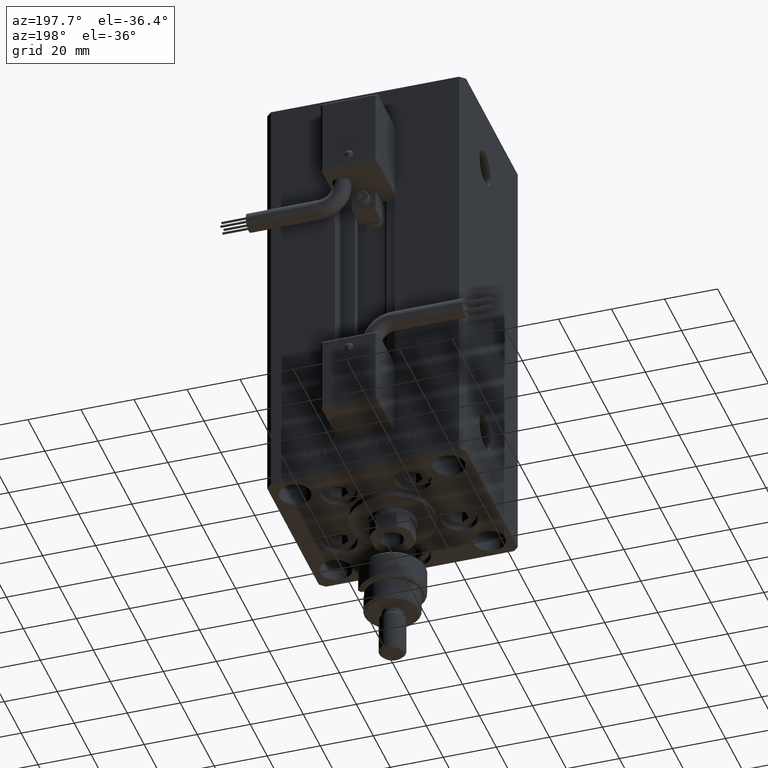
[diagram: clean part render]
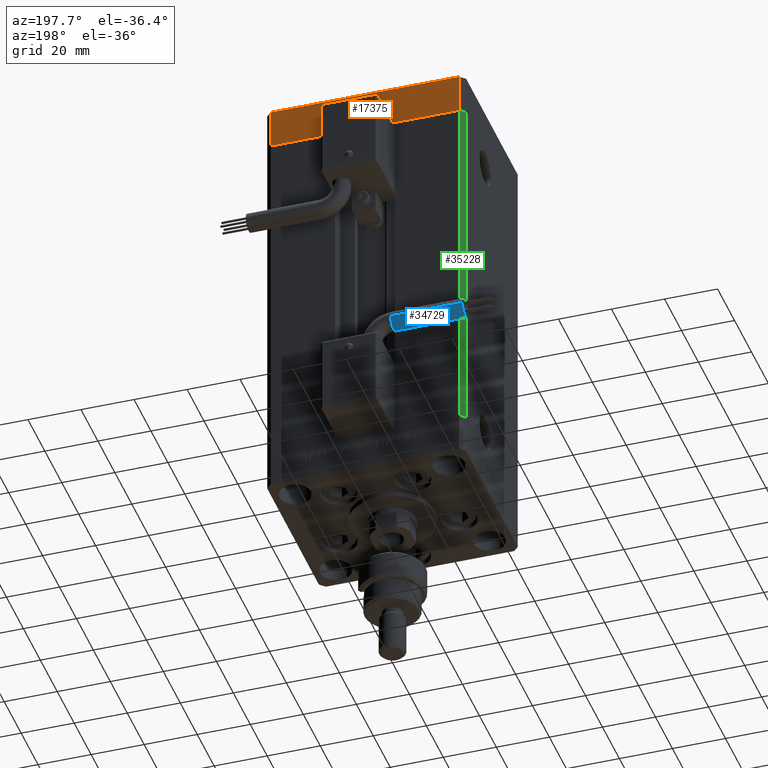
[diagram: same view with three faces highlighted in distinct colors, each labeled with its STEP entity id]
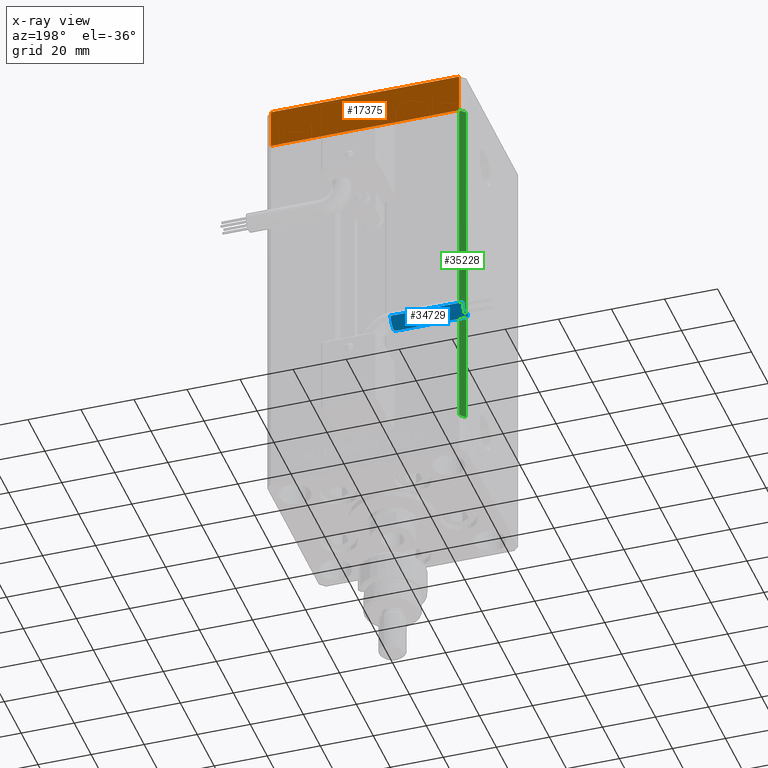
[diagram: x-ray of the same camera — body ghosted, the three highlighted faces saturated]
A machine part, auxiliary view with three faces highlighted in distinct colors.
The next image is the same camera in x-ray (body ghosted, the three faces saturated) — at least one of them is partly hidden behind the body in this view.
Their STEP definitions:

[orange] entity #17375 — the highlighted planar face has unit normal (-0, 1, 0).
#1588 = CARTESIAN_POINT ( 'NONE',  ( 35.49999999999992184, 32.50000000000000711, -15.00000000000000000 ) ) ;
#1651 = EDGE_CURVE ( 'NONE', #52981, #53309, #39514, .T. ) ;
#2789 = CARTESIAN_POINT ( 'NONE',  ( 35.49999999999992184, 32.50000000000000711, 0.000000000000000000 ) ) ;
#5662 = ORIENTED_EDGE ( 'NONE', *, *, #1651, .F. ) ;
#7018 = DIRECTION ( 'NONE',  ( -1.954618001100629052E-16, 1.000000000000000000, 0.000000000000000000 ) ) ;
#7950 = DIRECTION ( 'NONE',  ( 0.000000000000000000, 0.000000000000000000, 1.000000000000000000 ) ) ;
#8135 = AXIS2_PLACEMENT_3D ( 'NONE', #1588, #7018, #52498 ) ;
#9519 = CARTESIAN_POINT ( 'NONE',  ( 35.49999999999992184, 32.50000000000000711, -15.00000000000000000 ) ) ;
#10128 = DIRECTION ( 'NONE',  ( -1.000000000000000000, -1.954618001100629052E-16, 0.000000000000000000 ) ) ;
#11477 = DIRECTION ( 'NONE',  ( 0.000000000000000000, 0.000000000000000000, 1.000000000000000000 ) ) ;
#14752 = VECTOR ( 'NONE', #26142, 1000.000000000000000 ) ;
#15582 = CARTESIAN_POINT ( 'NONE',  ( -35.50000000000002842, 32.49999999999999289, -15.00000000000000000 ) ) ;
#16147 = LINE ( 'NONE', #53707, #16171 ) ;
#16171 = VECTOR ( 'NONE', #7950, 1000.000000000000000 ) ;
#17083 = ORIENTED_EDGE ( 'NONE', *, *, #22594, .T. ) ;
#17099 = VERTEX_POINT ( 'NONE', #39747 ) ;
#17375 = ADVANCED_FACE ( 'NONE', ( #44321 ), #27726, .T. ) ;
#18851 = LINE ( 'NONE', #51788, #27472 ) ;
#22594 = EDGE_CURVE ( 'NONE', #51465, #17099, #16147, .T. ) ;
#23367 = CARTESIAN_POINT ( 'NONE',  ( 35.49999999999992184, 32.50000000000000711, -15.00000000000000000 ) ) ;
#26142 = DIRECTION ( 'NONE',  ( -1.000000000000000000, -1.954618001100629052E-16, 0.000000000000000000 ) ) ;
#27472 = VECTOR ( 'NONE', #10128, 1000.000000000000000 ) ;
#27726 = PLANE ( 'NONE',  #8135 ) ;
#37921 = EDGE_CURVE ( 'NONE', #53309, #17099, #18851, .T. ) ;
#39514 = LINE ( 'NONE', #44148, #52881 ) ;
#39747 = CARTESIAN_POINT ( 'NONE',  ( -35.50000000000002842, 32.49999999999999289, 0.000000000000000000 ) ) ;
#41346 = EDGE_LOOP ( 'NONE', ( #48018, #5662, #44302, #17083 ) ) ;
#44148 = CARTESIAN_POINT ( 'NONE',  ( 35.49999999999992184, 32.50000000000000711, -15.00000000000000000 ) ) ;
#44302 = ORIENTED_EDGE ( 'NONE', *, *, #49792, .T. ) ;
#44321 = FACE_OUTER_BOUND ( 'NONE', #41346, .T. ) ;
#47343 = LINE ( 'NONE', #9519, #14752 ) ;
#48018 = ORIENTED_EDGE ( 'NONE', *, *, #37921, .F. ) ;
#49792 = EDGE_CURVE ( 'NONE', #52981, #51465, #47343, .T. ) ;
#51465 = VERTEX_POINT ( 'NONE', #15582 ) ;
#51788 = CARTESIAN_POINT ( 'NONE',  ( 35.49999999999992184, 32.50000000000000711, 0.000000000000000000 ) ) ;
#52498 = DIRECTION ( 'NONE',  ( -1.000000000000000000, -1.954618001100629052E-16, 0.000000000000000000 ) ) ;
#52881 = VECTOR ( 'NONE', #11477, 1000.000000000000000 ) ;
#52981 = VERTEX_POINT ( 'NONE', #23367 ) ;
#53309 = VERTEX_POINT ( 'NONE', #2789 ) ;
#53707 = CARTESIAN_POINT ( 'NONE',  ( -35.50000000000002842, 32.49999999999999289, -15.00000000000000000 ) ) ;

[blue] entity #34729 — the highlighted cylindrical surface (edge-blend (fillet) strip) has radius 3.5 mm, axis along (-1, 0, -0).
#1715 = VERTEX_POINT ( 'NONE', #3040 ) ;
#2519 = CARTESIAN_POINT ( 'NONE',  ( 13.80000000000000071, 45.50000000000000711, -65.00000000000000000 ) ) ;
#3040 = CARTESIAN_POINT ( 'NONE',  ( 40.80000000000000426, 38.50000000000000000, -65.00000000000000000 ) ) ;
#3043 = DIRECTION ( 'NONE',  ( 1.000000000000000000, 0.000000000000000000, 2.220446049250000002E-16 ) ) ;
#3082 = DIRECTION ( 'NONE',  ( 0.000000000000000000, 0.000000000000000000, -1.000000000000000000 ) ) ;
#3236 = CYLINDRICAL_SURFACE ( 'NONE', #14292, 3.500000000000003109 ) ;
#3578 = DIRECTION ( 'NONE',  ( 0.000000000000000000, 0.000000000000000000, -1.000000000000000000 ) ) ;
#6662 = AXIS2_PLACEMENT_3D ( 'NONE', #11520, #49337, #3082 ) ;
#10072 = CARTESIAN_POINT ( 'NONE',  ( 13.79999999999999893, 38.50000000000000000, -65.00000000000000000 ) ) ;
#11234 = CARTESIAN_POINT ( 'NONE',  ( 13.79999999999999716, 38.50000000000000000, -65.00000000000000000 ) ) ;
#11497 = LINE ( 'NONE', #2519, #48980 ) ;
#11520 = CARTESIAN_POINT ( 'NONE',  ( 13.79999999999999893, 42.00000000000000000, -65.00000000000000000 ) ) ;
#12760 = CARTESIAN_POINT ( 'NONE',  ( 13.79999999999999893, 42.00000000000000000, -65.00000000000000000 ) ) ;
#12789 = CIRCLE ( 'NONE', #6662, 3.500000000000003109 ) ;
#14292 = AXIS2_PLACEMENT_3D ( 'NONE', #12760, #38049, #32896 ) ;
#15225 = CARTESIAN_POINT ( 'NONE',  ( 40.80000000000000426, 42.00000000000000000, -65.00000000000000000 ) ) ;
#19706 = AXIS2_PLACEMENT_3D ( 'NONE', #15225, #22584, #27744 ) ;
#22584 = DIRECTION ( 'NONE',  ( 1.000000000000000000, 0.000000000000000000, 2.220446049250000002E-16 ) ) ;
#23230 = LINE ( 'NONE', #11234, #26383 ) ;
#23979 = CARTESIAN_POINT ( 'NONE',  ( 40.80000000000000426, 45.50000000000000711, -65.00000000000000000 ) ) ;
#24383 = EDGE_CURVE ( 'NONE', #40177, #36632, #12789, .T. ) ;
#25644 = CIRCLE ( 'NONE', #49113, 3.500000000000003109 ) ;
#26383 = VECTOR ( 'NONE', #27572, 1000.000000000000000 ) ;
#27572 = DIRECTION ( 'NONE',  ( 1.000000000000000000, -2.599999999999999847E-16, 2.220446049250000002E-16 ) ) ;
#27744 = DIRECTION ( 'NONE',  ( 0.000000000000000000, 0.000000000000000000, -1.000000000000000000 ) ) ;
#27771 = VERTEX_POINT ( 'NONE', #23979 ) ;
#27788 = ORIENTED_EDGE ( 'NONE', *, *, #33201, .T. ) ;
#28389 = EDGE_LOOP ( 'NONE', ( #53452, #34136, #50194, #27788, #35611 ) ) ;
#29368 = CARTESIAN_POINT ( 'NONE',  ( 13.79999999999999893, 45.50000000000000711, -65.00000000000000000 ) ) ;
#32896 = DIRECTION ( 'NONE',  ( -4.956352788505158337E-16, -1.000000000000000000, 0.000000000000000000 ) ) ;
#33138 = EDGE_CURVE ( 'NONE', #41204, #27771, #11497, .T. ) ;
#33201 = EDGE_CURVE ( 'NONE', #36632, #1715, #23230, .T. ) ;
#34136 = ORIENTED_EDGE ( 'NONE', *, *, #35793, .T. ) ;
#34729 = ADVANCED_FACE ( 'NONE', ( #40534 ), #3236, .T. ) ;
#35611 = ORIENTED_EDGE ( 'NONE', *, *, #43543, .F. ) ;
#35793 = EDGE_CURVE ( 'NONE', #41204, #40177, #25644, .T. ) ;
#36264 = DIRECTION ( 'NONE',  ( 1.000000000000000000, -2.599999999999999847E-16, 2.220446049250000002E-16 ) ) ;
#36632 = VERTEX_POINT ( 'NONE', #10072 ) ;
#37318 = CARTESIAN_POINT ( 'NONE',  ( 13.79999999999999893, 42.00000000000000000, -65.00000000000000000 ) ) ;
#38049 = DIRECTION ( 'NONE',  ( 1.000000000000000000, -2.599999999999999847E-16, 2.220446049250000002E-16 ) ) ;
#40177 = VERTEX_POINT ( 'NONE', #48682 ) ;
#40534 = FACE_OUTER_BOUND ( 'NONE', #28389, .T. ) ;
#41204 = VERTEX_POINT ( 'NONE', #29368 ) ;
#43157 = CIRCLE ( 'NONE', #19706, 3.500000000000003109 ) ;
#43543 = EDGE_CURVE ( 'NONE', #27771, #1715, #43157, .T. ) ;
#48682 = CARTESIAN_POINT ( 'NONE',  ( 13.79999999999999893, 41.99999999999999289, -61.50000000000000000 ) ) ;
#48980 = VECTOR ( 'NONE', #36264, 1000.000000000000000 ) ;
#49113 = AXIS2_PLACEMENT_3D ( 'NONE', #37318, #3043, #3578 ) ;
#49337 = DIRECTION ( 'NONE',  ( 1.000000000000000000, 0.000000000000000000, 2.220446049250000002E-16 ) ) ;
#50194 = ORIENTED_EDGE ( 'NONE', *, *, #24383, .T. ) ;
#53452 = ORIENTED_EDGE ( 'NONE', *, *, #33138, .F. ) ;

[green] entity #35228 — the highlighted planar face has unit normal (0.7071, -0.7071, 0).
#592 = DIRECTION ( 'NONE',  ( -0.000000000000000000, -0.000000000000000000, -1.000000000000000000 ) ) ;
#953 = DIRECTION ( 'NONE',  ( 0.7071067811865451302, -0.7071067811865500152, 0.000000000000000000 ) ) ;
#1752 = ORIENTED_EDGE ( 'NONE', *, *, #30574, .F. ) ;
#1761 = DIRECTION ( 'NONE',  ( 0.7071067811865500152, 0.7071067811865451302, 0.000000000000000000 ) ) ;
#9340 = CARTESIAN_POINT ( 'NONE',  ( -35.50000000000000000, 32.49999999999999289, 136.0000000000000000 ) ) ;
#11176 = ORIENTED_EDGE ( 'NONE', *, *, #43134, .F. ) ;
#11227 = VECTOR ( 'NONE', #38720, 1000.000000000000114 ) ;
#12108 = ORIENTED_EDGE ( 'NONE', *, *, #28920, .T. ) ;
#13431 = CARTESIAN_POINT ( 'NONE',  ( -35.50000000000000000, 32.49999999999999289, 0.000000000000000000 ) ) ;
#16988 = EDGE_LOOP ( 'NONE', ( #12108, #11176, #1752, #27257 ) ) ;
#17321 = FACE_OUTER_BOUND ( 'NONE', #16988, .T. ) ;
#18111 = CARTESIAN_POINT ( 'NONE',  ( -35.50000000000000000, 32.49999999999999289, 136.0000000000000000 ) ) ;
#20983 = VERTEX_POINT ( 'NONE', #28049 ) ;
#22371 = CARTESIAN_POINT ( 'NONE',  ( -37.50000000000000711, 30.50000000000000000, 136.0000000000000000 ) ) ;
#27204 = VECTOR ( 'NONE', #34649, 1000.000000000000114 ) ;
#27224 = CARTESIAN_POINT ( 'NONE',  ( -35.50000000000000000, 32.49999999999999289, 136.0000000000000000 ) ) ;
#27257 = ORIENTED_EDGE ( 'NONE', *, *, #51574, .T. ) ;
#28049 = CARTESIAN_POINT ( 'NONE',  ( -35.50000000000000000, 32.49999999999999289, 136.0000000000000000 ) ) ;
#28227 = AXIS2_PLACEMENT_3D ( 'NONE', #18111, #953, #1761 ) ;
#28920 = EDGE_CURVE ( 'NONE', #46202, #42889, #42808, .T. ) ;
#30574 = EDGE_CURVE ( 'NONE', #20983, #51293, #46630, .T. ) ;
#31200 = CARTESIAN_POINT ( 'NONE',  ( -37.50000000000000711, 30.50000000000000000, 0.000000000000000000 ) ) ;
#32503 = CARTESIAN_POINT ( 'NONE',  ( -37.50000000000000711, 30.50000000000000000, 136.0000000000000000 ) ) ;
#34573 = DIRECTION ( 'NONE',  ( -0.000000000000000000, -0.000000000000000000, -1.000000000000000000 ) ) ;
#34649 = DIRECTION ( 'NONE',  ( -0.7071067811865500152, -0.7071067811865451302, 0.000000000000000000 ) ) ;
#35228 = ADVANCED_FACE ( 'NONE', ( #17321 ), #43139, .F. ) ;
#37947 = VECTOR ( 'NONE', #592, 1000.000000000000000 ) ;
#38720 = DIRECTION ( 'NONE',  ( -0.7071067811865500152, -0.7071067811865451302, 0.000000000000000000 ) ) ;
#42272 = CARTESIAN_POINT ( 'NONE',  ( -35.50000000000000000, 32.49999999999999289, 0.000000000000000000 ) ) ;
#42808 = LINE ( 'NONE', #13431, #11227 ) ;
#42889 = VERTEX_POINT ( 'NONE', #31200 ) ;
#43134 = EDGE_CURVE ( 'NONE', #51293, #42889, #46589, .T. ) ;
#43139 = PLANE ( 'NONE',  #28227 ) ;
#46202 = VERTEX_POINT ( 'NONE', #42272 ) ;
#46589 = LINE ( 'NONE', #22371, #37947 ) ;
#46630 = LINE ( 'NONE', #9340, #27204 ) ;
#46949 = VECTOR ( 'NONE', #34573, 1000.000000000000000 ) ;
#47355 = LINE ( 'NONE', #27224, #46949 ) ;
#51293 = VERTEX_POINT ( 'NONE', #32503 ) ;
#51574 = EDGE_CURVE ( 'NONE', #20983, #46202, #47355, .T. ) ;